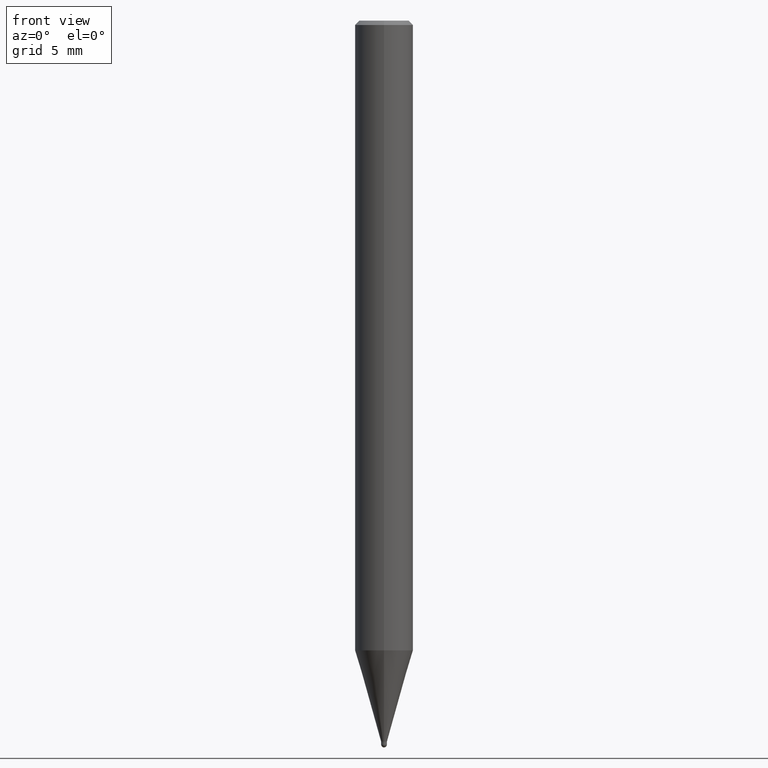
[diagram: clean part render]
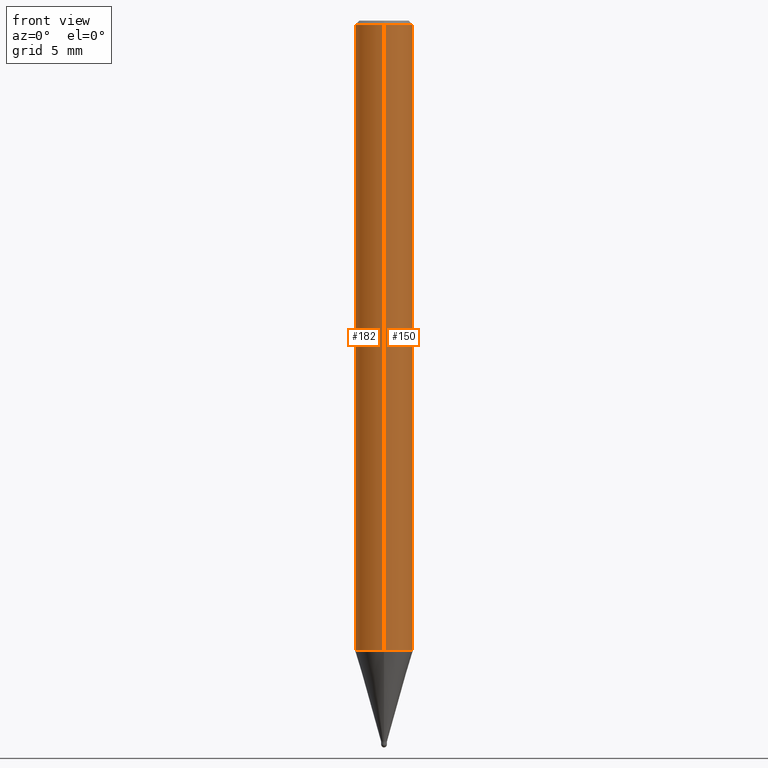
[diagram: same view with one multi-face feature highlighted, each face labeled with its STEP entity id]
A machine part, front view. The highlighted faces form ONE feature: a constant-radius fillet chain: 2 tangent blend faces with common blend radius 2 mm. The faces share edges in the B-rep.
Their STEP definitions:
[1] entity #182 (Cylinder):
#90=VERTEX_POINT('',#216);
#96=EDGE_CURVE('',#108,#102,#223,.T.);
#102=VERTEX_POINT('',#229);
#106=EDGE_CURVE('',#122,#108,#233,.T.);
#108=VERTEX_POINT('',#235);
#122=VERTEX_POINT('',#249);
#148=EDGE_CURVE('',#90,#122,#278,.T.);
#182=ADVANCED_FACE('',(#319),#320,.T.);
#186=EDGE_CURVE('',#90,#102,#325,.T.);
#216=CARTESIAN_POINT('',(2.44921270764475E-016,-2.0,-43.323));
#223=LINE('',#357,#358);
#229=CARTESIAN_POINT('',(0.0,2.0,-43.323));
#233=CIRCLE('',#370,2.0);
#235=CARTESIAN_POINT('',(0.0,2.0,-0.299999999999997));
#249=CARTESIAN_POINT('',(2.44921270764475E-016,-2.0,-0.299999999999997));
#278=LINE('',#427,#428);
#319=FACE_OUTER_BOUND('',#479,.T.);
#320=CYLINDRICAL_SURFACE('',#480,2.0);
#325=CIRCLE('',#486,2.0);
#357=CARTESIAN_POINT('',(-2.44921270764475E-016,2.0,-21.8115));
#358=VECTOR('',#510,1.0);
#370=AXIS2_PLACEMENT_3D('',#514,#515,#516);
#427=CARTESIAN_POINT('',(2.44921270764475E-016,-2.0,-21.8115));
#428=VECTOR('',#560,1.0);
#479=EDGE_LOOP('',(#624,#625,#626,#627));
#480=AXIS2_PLACEMENT_3D('',#628,#629,#630);
#486=AXIS2_PLACEMENT_3D('',#639,#640,#641);
#510=DIRECTION('',(0.0,0.0,-1.0));
#514=CARTESIAN_POINT('',(0.0,0.0,-0.299999999999997));
#515=DIRECTION('',(0.0,0.0,-1.0));
#516=DIRECTION('',(0.0,1.0,0.0));
#560=DIRECTION('',(-0.0,-0.0,1.0));
#624=ORIENTED_EDGE('',*,*,#96,.T.);
#625=ORIENTED_EDGE('',*,*,#186,.F.);
#626=ORIENTED_EDGE('',*,*,#148,.T.);
#627=ORIENTED_EDGE('',*,*,#106,.T.);
#628=CARTESIAN_POINT('',(0.0,0.0,-21.8115));
#629=DIRECTION('',(-0.0,-0.0,1.0));
#630=DIRECTION('',(0.0,1.0,0.0));
#639=CARTESIAN_POINT('',(0.0,0.0,-43.323));
#640=DIRECTION('',(0.0,0.0,-1.0));
#641=DIRECTION('',(0.0,1.0,0.0));
[2] entity #150 (Cylinder):
#88=EDGE_CURVE('',#108,#122,#214,.T.);
#90=VERTEX_POINT('',#216);
#96=EDGE_CURVE('',#108,#102,#223,.T.);
#102=VERTEX_POINT('',#229);
#108=VERTEX_POINT('',#235);
#122=VERTEX_POINT('',#249);
#148=EDGE_CURVE('',#90,#122,#278,.T.);
#150=ADVANCED_FACE('',(#280),#281,.T.);
#170=EDGE_CURVE('',#102,#90,#305,.T.);
#214=CIRCLE('',#347,2.0);
#216=CARTESIAN_POINT('',(2.44921270764475E-016,-2.0,-43.323));
#223=LINE('',#357,#358);
#229=CARTESIAN_POINT('',(0.0,2.0,-43.323));
#235=CARTESIAN_POINT('',(0.0,2.0,-0.299999999999997));
#249=CARTESIAN_POINT('',(2.44921270764475E-016,-2.0,-0.299999999999997));
#278=LINE('',#427,#428);
#280=FACE_OUTER_BOUND('',#430,.T.);
#281=CYLINDRICAL_SURFACE('',#431,2.0);
#305=CIRCLE('',#460,2.0);
#347=AXIS2_PLACEMENT_3D('',#499,#500,#501);
#357=CARTESIAN_POINT('',(-2.44921270764475E-016,2.0,-21.8115));
#358=VECTOR('',#510,1.0);
#427=CARTESIAN_POINT('',(2.44921270764475E-016,-2.0,-21.8115));
#428=VECTOR('',#560,1.0);
#430=EDGE_LOOP('',(#562,#563,#564,#565));
#431=AXIS2_PLACEMENT_3D('',#566,#567,#568);
#460=AXIS2_PLACEMENT_3D('',#602,#603,#604);
#499=CARTESIAN_POINT('',(0.0,0.0,-0.299999999999997));
#500=DIRECTION('',(0.0,0.0,-1.0));
#501=DIRECTION('',(0.0,1.0,0.0));
#510=DIRECTION('',(0.0,0.0,-1.0));
#560=DIRECTION('',(-0.0,-0.0,1.0));
#562=ORIENTED_EDGE('',*,*,#96,.F.);
#563=ORIENTED_EDGE('',*,*,#88,.T.);
#564=ORIENTED_EDGE('',*,*,#148,.F.);
#565=ORIENTED_EDGE('',*,*,#170,.F.);
#566=CARTESIAN_POINT('',(0.0,0.0,-21.8115));
#567=DIRECTION('',(-0.0,-0.0,1.0));
#568=DIRECTION('',(0.0,1.0,0.0));
#602=CARTESIAN_POINT('',(0.0,0.0,-43.323));
#603=DIRECTION('',(0.0,0.0,-1.0));
#604=DIRECTION('',(0.0,1.0,0.0));